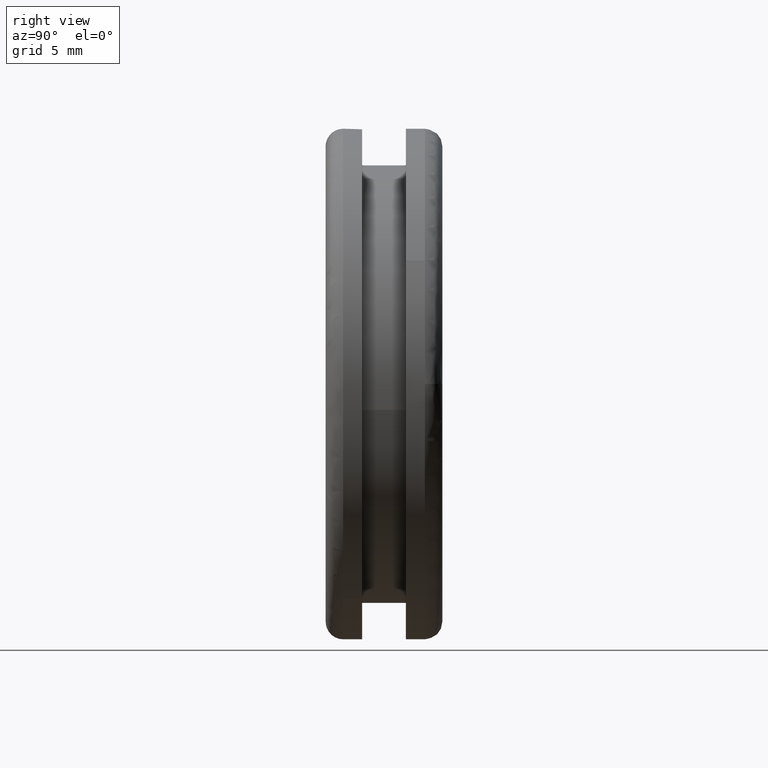
[diagram: clean part render]
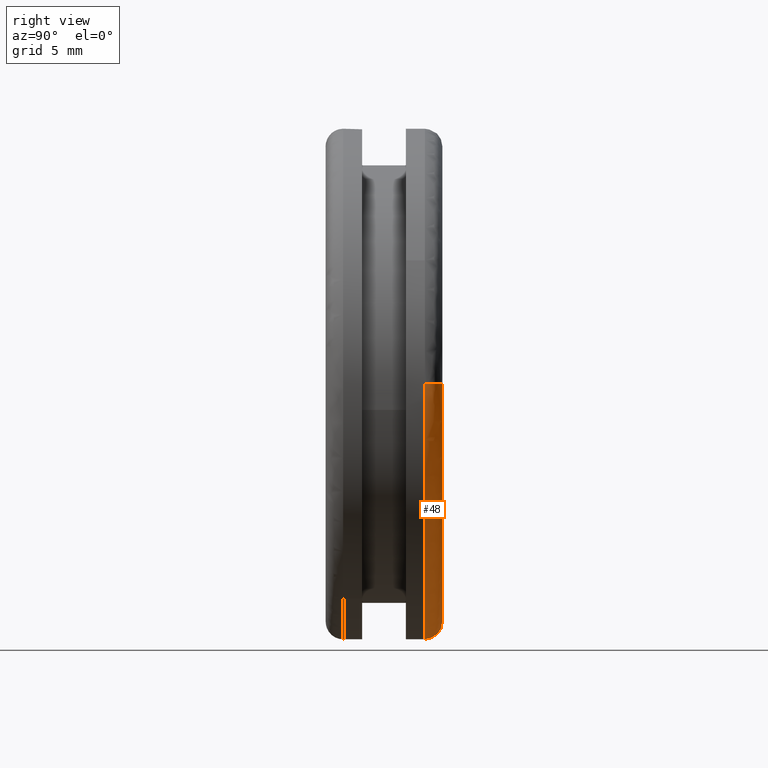
[diagram: same view with one face highlighted and labeled with its STEP entity id]
A machine part, right view. The second image highlights one B-rep face of the part: STEP entity #48.
In plain terms, the highlighted face is a freeform B-spline surface patch.
Its self-contained STEP definition (entity closure, byte-faithful):
#48=ADVANCED_FACE('',(#141),#140,.T.);
#140=( BOUNDED_SURFACE() B_SPLINE_SURFACE( 2,2,((#264,#265,#266,#267,#268),(#269,#270,#271,#272,#273),(#274,#275,#276,#277,#278),(#279,#280,#281,#282,#283),(#284,#285,#286,#287,#288)), .UNSPECIFIED.,.F.,.F.,.F.) B_SPLINE_SURFACE_WITH_KNOTS((3,2,3),(3,2,3),(0.00000000000E+000,5.00000000000E-001,1.00000000000E+000),(0.00000000000E+000,5.00000000000E-001,1.00000000000E+000), .UNSPECIFIED. ) GEOMETRIC_REPRESENTATION_ITEM() RATIONAL_B_SPLINE_SURFACE(((1.00000000000E+000,7.07106780756E-001,1.00000000000E+000,7.07106780756E-001,1.00000000000E+000),(7.07106781187E-001,4.99999999696E-001,7.07106781187E-001,4.99999999696E-001,7.07106781187E-001),(1.00000000000E+000,7.07106780756E-001,1.00000000000E+000,7.07106780756E-001,1.00000000000E+000),(7.07106781187E-001,4.99999999696E-001,7.07106781187E-001,4.99999999696E-001,7.07106781187E-001),(1.00000000000E+000,7.07106780756E-001,1.00000000000E+000,7.07106780756E-001,1.00000000000E+000))) REPRESENTATION_ITEM('') SURFACE() );
#141=FACE_OUTER_BOUND('',#289,.T.);
#264=CARTESIAN_POINT('',(-1.51000000000E+001,6.79999999709E+000,3.14304197921E-013));
#265=CARTESIAN_POINT('',(-1.50999999971E+001,7.99999999855E+000,3.06864412889E-013));
#266=CARTESIAN_POINT('',(-1.62999999985E+001,8.00000000001E+000,3.06717460117E-013));
#267=CARTESIAN_POINT('',(-1.75000000000E+001,8.00000000147E+000,3.06570507345E-013));
#268=CARTESIAN_POINT('',(-1.75000000000E+001,6.80000000001E+000,3.14010292378E-013));
#269=CARTESIAN_POINT('',(-1.51000000000E+001,6.79999999709E+000,-1.51000000000E+001));
#270=CARTESIAN_POINT('',(-1.50999999971E+001,7.99999999855E+000,-1.50999999971E+001));
#271=CARTESIAN_POINT('',(-1.62999999985E+001,8.00000000001E+000,-1.62999999985E+001));
#272=CARTESIAN_POINT('',(-1.75000000000E+001,8.00000000147E+000,-1.75000000000E+001));
#273=CARTESIAN_POINT('',(-1.75000000000E+001,6.80000000001E+000,-1.75000000000E+001));
#274=CARTESIAN_POINT('',(-4.74527888358E-012,6.79999999708E+000,-1.51000000000E+001));
#275=CARTESIAN_POINT('',(-4.51020794608E-012,7.99999999854E+000,-1.50999999971E+001));
#276=CARTESIAN_POINT('',(-4.51013447184E-012,8.00000000000E+000,-1.62999999985E+001));
#277=CARTESIAN_POINT('',(-4.51006099760E-012,8.00000000146E+000,-1.75000000000E+001));
#278=CARTESIAN_POINT('',(-4.74513193510E-012,6.80000000000E+000,-1.75000000000E+001));
#279=CARTESIAN_POINT('',(1.51000000000E+001,6.79999999708E+000,-1.51000000000E+001));
#280=CARTESIAN_POINT('',(1.50999999971E+001,7.99999999854E+000,-1.50999999971E+001));
#281=CARTESIAN_POINT('',(1.62999999985E+001,8.00000000000E+000,-1.62999999985E+001));
#282=CARTESIAN_POINT('',(1.75000000000E+001,8.00000000146E+000,-1.75000000000E+001));
#283=CARTESIAN_POINT('',(1.75000000000E+001,6.80000000000E+000,-1.75000000000E+001));
#284=CARTESIAN_POINT('',(1.51000000000E+001,6.79999999708E+000,3.16153292442E-013));
#285=CARTESIAN_POINT('',(1.50999999971E+001,7.99999999854E+000,3.08713507410E-013));
#286=CARTESIAN_POINT('',(1.62999999985E+001,8.00000000000E+000,3.08713502548E-013));
#287=CARTESIAN_POINT('',(1.75000000000E+001,8.00000000146E+000,3.08713497685E-013));
#288=CARTESIAN_POINT('',(1.75000000000E+001,6.80000000000E+000,3.16153282717E-013));
#289=EDGE_LOOP('',(#435,#436,#437,#438,#439,#440,#441,#442));
#435=ORIENTED_EDGE('',*,*,#520,.F.);
#436=ORIENTED_EDGE('',*,*,#521,.F.);
#437=ORIENTED_EDGE('',*,*,#522,.F.);
#438=ORIENTED_EDGE('',*,*,#523,.F.);
#439=ORIENTED_EDGE('',*,*,#524,.F.);
#440=ORIENTED_EDGE('',*,*,#498,.T.);
#441=ORIENTED_EDGE('',*,*,#500,.T.);
#442=ORIENTED_EDGE('',*,*,#525,.T.);
#498=EDGE_CURVE('',#619,#620,#621,.T.);
#500=EDGE_CURVE('',#620,#627,#634,.T.);
#520=EDGE_CURVE('',#769,#770,#771,.T.);
#521=EDGE_CURVE('',#777,#769,#778,.T.);
#522=EDGE_CURVE('',#784,#777,#785,.T.);
#523=EDGE_CURVE('',#791,#784,#792,.T.);
#524=EDGE_CURVE('',#619,#791,#798,.T.);
#525=EDGE_CURVE('',#627,#770,#804,.T.);
#619=VERTEX_POINT('',#926);
#620=VERTEX_POINT('',#927);
#621=CIRCLE('',#931,1.63000000013E+001);
#627=VERTEX_POINT('',#932);
#634=CIRCLE('',#940,1.63000000013E+001);
#769=VERTEX_POINT('',#1024);
#770=VERTEX_POINT('',#1025);
#771=CIRCLE('',#1029,1.75000000000E+001);
#777=VERTEX_POINT('',#1030);
#778=CIRCLE('',#1034,1.75000000000E+001);
#784=VERTEX_POINT('',#1035);
#785=CIRCLE('',#1039,1.75000000000E+001);
#791=VERTEX_POINT('',#1040);
#792=CIRCLE('',#1044,1.75000000000E+001);
#798=(BOUNDED_CURVE() B_SPLINE_CURVE(2,(#1045,#1046,#1047),.UNSPECIFIED.,.F.,.F.) B_SPLINE_CURVE_WITH_KNOTS((3,3),(5.00000000000E-001,1.00000000000E+000),.UNSPECIFIED.) CURVE() GEOMETRIC_REPRESENTATION_ITEM() RATIONAL_B_SPLINE_CURVE((1.00000000000E+000,7.07106780756E-001,1.00000000000E+000)) REPRESENTATION_ITEM('') );
#804=(BOUNDED_CURVE() B_SPLINE_CURVE(3,(#1048,#1049,#1050,#1051,#1052),.UNSPECIFIED.,.F.,.F.) B_SPLINE_CURVE_WITH_KNOTS((4,1,4),(4.99999988183E-001,7.49999993195E-001,1.00000000000E+000),.UNSPECIFIED.) CURVE() GEOMETRIC_REPRESENTATION_ITEM() RATIONAL_B_SPLINE_CURVE((1.00000000000E+000,1.00000000000E+000,1.00000000000E+000,1.00000000000E+000,1.00000000000E+000)) REPRESENTATION_ITEM('') );
#926=CARTESIAN_POINT('',(-1.63000000018E+001,8.00000000000E+000,3.06336019179E-013));
#927=CARTESIAN_POINT('',(-6.21724893790E-015,8.00000000000E+000,-1.63000000025E+001));
#928=CARTESIAN_POINT('',(-5.49611911538E-010,8.00000000000E+000,-1.25473142987E-009));
#929=DIRECTION('',(7.77937537859E-015,-1.00000000000E+000,8.62827210442E-014));
#930=DIRECTION('',(3.37185279697E-011,-8.62827210439E-014,-1.00000000000E+000));
#931=AXIS2_PLACEMENT_3D('',#928,#929,#930);
#932=CARTESIAN_POINT('',(1.62999999129E+001,8.00000000000E+000,1.69162723080E-003));
#937=CARTESIAN_POINT('',(-5.49611911538E-010,8.00000000000E+000,-1.25473142987E-009));
#938=DIRECTION('',(7.77937537859E-015,-1.00000000000E+000,8.62827210442E-014));
#939=DIRECTION('',(3.37185279697E-011,-8.62827210439E-014,-1.00000000000E+000));
#940=AXIS2_PLACEMENT_3D('',#937,#938,#939);
#1024=CARTESIAN_POINT('',(1.74573992922E+001,6.80000000002E+000,-1.22033190258E+000));
#1025=CARTESIAN_POINT('',(1.75000000000E+001,6.79999999998E+000,3.54585307653E-006));
#1026=CARTESIAN_POINT('',(2.62545540863E-012,6.80000000023E+000,5.77315972805E-015));
#1027=DIRECTION('',(-1.44008778335E-011,-1.00000000000E+000,-2.92381209308E-011));
#1028=DIRECTION('',(-9.97565673840E-001,1.23269521574E-011,6.97332515758E-002));
#1029=AXIS2_PLACEMENT_3D('',#1026,#1027,#1028);
#1030=CARTESIAN_POINT('',(0.00000000000E+000,6.80000000000E+000,-1.75000000000E+001));
#1031=CARTESIAN_POINT('',(-3.18145509937E-012,6.80000000002E+000,3.41415784533E-012));
#1032=DIRECTION('',(-1.79439138137E-017,-1.00000000000E+000,1.13250361470E-012));
#1033=DIRECTION('',(-1.81797434249E-013,1.13250361470E-012,1.00000000000E+000));
#1034=AXIS2_PLACEMENT_3D('',#1031,#1032,#1033);
#1035=CARTESIAN_POINT('',(-1.53115624801E+001,6.79999999856E+000,-8.47384531465E+000));
#1036=CARTESIAN_POINT('',(-5.32907051820E-015,6.80000000003E+000,-3.55271367880E-015));
#1037=DIRECTION('',(2.84038553385E-012,-1.00000000000E+000,1.68464392093E-010));
#1038=DIRECTION('',(9.99921044204E-001,7.23230998899E-013,-1.25660398839E-002));
#1039=AXIS2_PLACEMENT_3D('',#1036,#1037,#1038);
#1040=CARTESIAN_POINT('',(-1.75000000000E+001,6.79999999998E+000,3.14043261123E-013));
#1041=CARTESIAN_POINT('',(-5.32907051820E-015,6.80000000003E+000,-3.55271367880E-015));
#1042=DIRECTION('',(2.84038553385E-012,-1.00000000000E+000,1.68464392093E-010));
#1043=DIRECTION('',(9.99921044204E-001,7.23230998899E-013,-1.25660398839E-002));
#1044=AXIS2_PLACEMENT_3D('',#1041,#1042,#1043);
#1045=CARTESIAN_POINT('',(-1.62999999985E+001,8.00000000001E+000,3.06717460117E-013));
#1046=CARTESIAN_POINT('',(-1.75000000000E+001,8.00000000147E+000,3.06570507345E-013));
#1047=CARTESIAN_POINT('',(-1.75000000000E+001,6.80000000001E+000,3.14010292378E-013));
#1048=CARTESIAN_POINT('',(1.62999999584E+001,8.00000000000E+000,3.12046684798E-013));
#1049=CARTESIAN_POINT('',(1.66113404917E+001,8.00266888207E+000,3.12326414831E-013));
#1050=CARTESIAN_POINT('',(1.72400515622E+001,7.74005159709E+000,3.14357093601E-013));
#1051=CARTESIAN_POINT('',(1.75026688714E+001,7.11134053557E+000,3.18043949236E-013));
#1052=CARTESIAN_POINT('',(1.75000000000E+001,6.80000000000E+000,3.19744231092E-013));